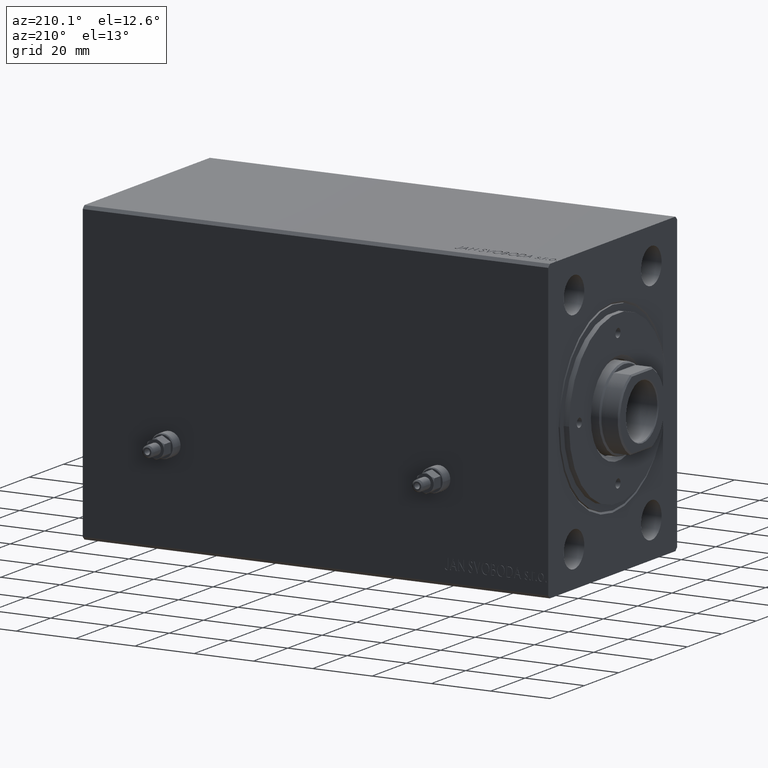
[diagram: clean part render]
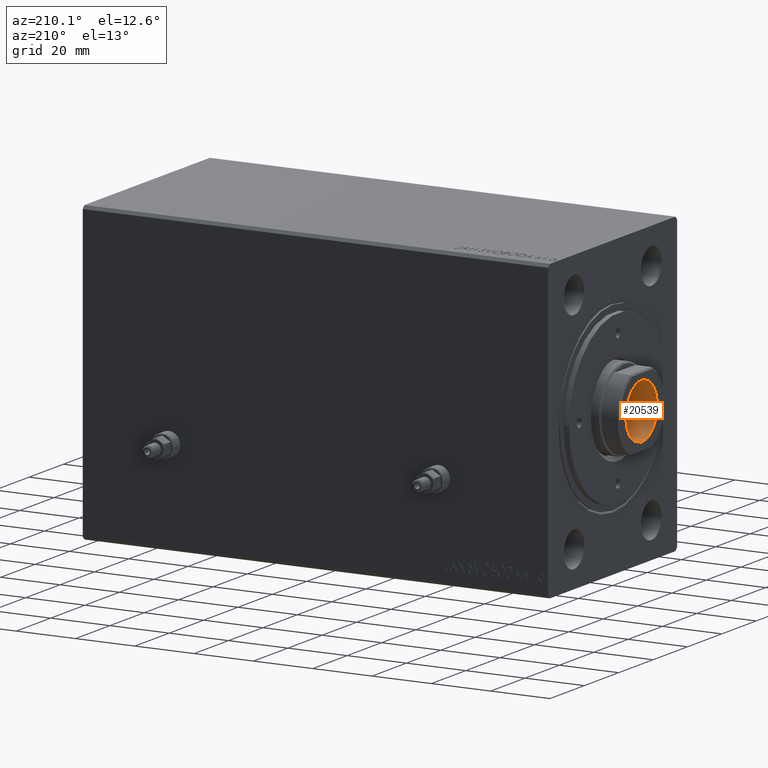
[diagram: same view with one face highlighted and labeled with its STEP entity id]
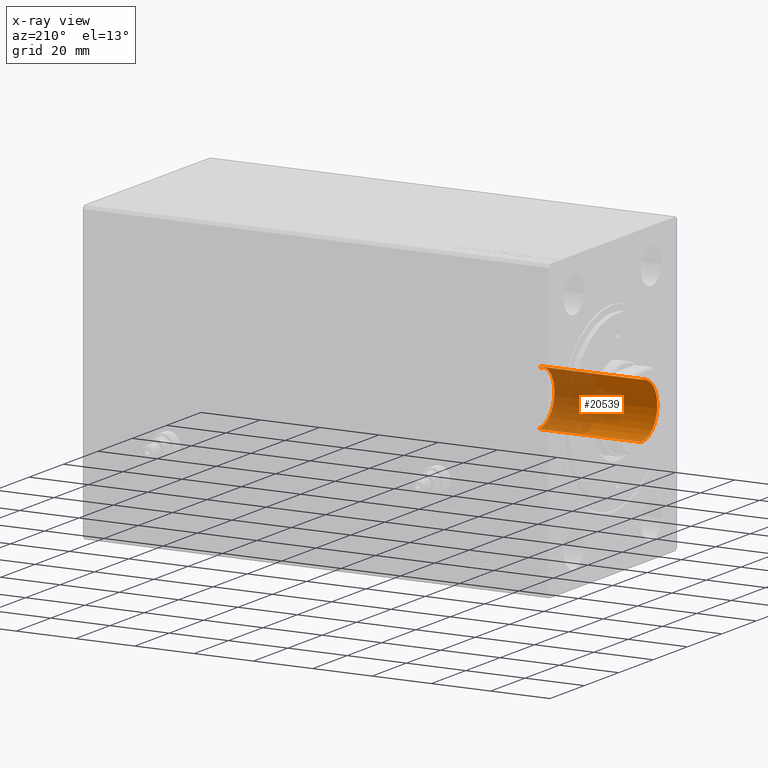
[diagram: x-ray of the same camera — body ghosted, the highlighted face saturated]
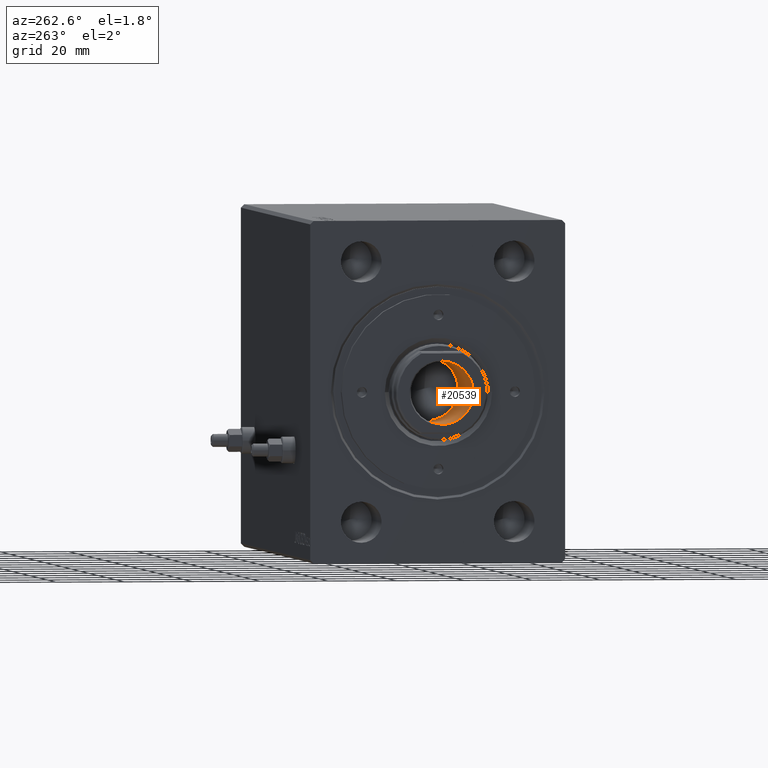
[diagram: same view with one face highlighted and labeled with its STEP entity id]
A machine part, auxiliary view. The second image highlights one B-rep face of the part: STEP entity #20539.
The next image is the same camera in x-ray: the body ghosted, the highlighted face saturated — about 55% of this face is hidden behind the body in this view.
A second angle (auxiliary view) of the same face is appended — the face is thin or edge-on in the first view.
In plain terms, the highlighted cylindrical surface (edge-blend (fillet) strip) has radius 9.25 mm, axis along (-1, 0, 0).
Its self-contained STEP definition (entity closure, byte-faithful):
#1861 = VERTEX_POINT ( 'NONE', #34752 ) ;
#2052 = VERTEX_POINT ( 'NONE', #17107 ) ;
#2425 = ORIENTED_EDGE ( 'NONE', *, *, #5252, .T. ) ;
#2764 = ORIENTED_EDGE ( 'NONE', *, *, #7318, .F. ) ;
#3007 = DIRECTION ( 'NONE',  ( 0.000000000000000000, 0.000000000000000000, 1.000000000000000000 ) ) ;
#3748 = CARTESIAN_POINT ( 'NONE',  ( 9.249999999999996447, 0.000000000000000000, 149.1999999999999886 ) ) ;
#4228 = VECTOR ( 'NONE', #10354, 1000.000000000000000 ) ;
#4233 = DIRECTION ( 'NONE',  ( -0.000000000000000000, -0.000000000000000000, 1.000000000000000000 ) ) ;
#5252 = EDGE_CURVE ( 'NONE', #1861, #22388, #42260, .T. ) ;
#6015 = CARTESIAN_POINT ( 'NONE',  ( 9.249999999999994671, 0.000000000000000000, 114.2000000000000028 ) ) ;
#6224 = DIRECTION ( 'NONE',  ( 1.000000000000000000, 0.000000000000000000, 0.000000000000000000 ) ) ;
#7318 = EDGE_CURVE ( 'NONE', #37823, #22388, #38380, .T. ) ;
#7653 = CYLINDRICAL_SURFACE ( 'NONE', #25427, 9.249999999999996447 ) ;
#7900 = DIRECTION ( 'NONE',  ( -0.000000000000000000, -0.000000000000000000, 1.000000000000000000 ) ) ;
#10354 = DIRECTION ( 'NONE',  ( -0.000000000000000000, -0.000000000000000000, 1.000000000000000000 ) ) ;
#10930 = CIRCLE ( 'NONE', #25519, 9.249999999999994671 ) ;
#10947 = CARTESIAN_POINT ( 'NONE',  ( -9.249999999999996447, 1.132798289211301304E-15, 149.1999999999999886 ) ) ;
#11663 = ORIENTED_EDGE ( 'NONE', *, *, #32101, .T. ) ;
#13705 = DIRECTION ( 'NONE',  ( -0.000000000000000000, -0.000000000000000000, 1.000000000000000000 ) ) ;
#17107 = CARTESIAN_POINT ( 'NONE',  ( -9.249999999999994671, 1.132798289211300909E-15, 114.2000000000000028 ) ) ;
#17801 = LINE ( 'NONE', #10947, #24614 ) ;
#17923 = CARTESIAN_POINT ( 'NONE',  ( 0.000000000000000000, 0.000000000000000000, 114.2000000000000028 ) ) ;
#18132 = DIRECTION ( 'NONE',  ( 1.000000000000000000, 0.000000000000000000, 0.000000000000000000 ) ) ;
#18857 = CARTESIAN_POINT ( 'NONE',  ( 9.249999999999996447, 0.000000000000000000, 148.9000000000000057 ) ) ;
#19745 = AXIS2_PLACEMENT_3D ( 'NONE', #44029, #3007, #6224 ) ;
#20539 = ADVANCED_FACE ( 'NONE', ( #38852 ), #7653, .F. ) ;
#21539 = CARTESIAN_POINT ( 'NONE',  ( 0.000000000000000000, 0.000000000000000000, 149.1999999999999886 ) ) ;
#22388 = VERTEX_POINT ( 'NONE', #18857 ) ;
#24347 = EDGE_CURVE ( 'NONE', #2052, #37823, #10930, .T. ) ;
#24614 = VECTOR ( 'NONE', #13705, 1000.000000000000000 ) ;
#25427 = AXIS2_PLACEMENT_3D ( 'NONE', #21539, #4233, #18132 ) ;
#25438 = DIRECTION ( 'NONE',  ( 1.000000000000000000, 0.000000000000000000, 0.000000000000000000 ) ) ;
#25519 = AXIS2_PLACEMENT_3D ( 'NONE', #17923, #7900, #25438 ) ;
#30070 = EDGE_LOOP ( 'NONE', ( #42866, #11663, #2425, #2764 ) ) ;
#32101 = EDGE_CURVE ( 'NONE', #2052, #1861, #17801, .T. ) ;
#34752 = CARTESIAN_POINT ( 'NONE',  ( -9.249999999999996447, 1.132798289211301304E-15, 148.9000000000000057 ) ) ;
#37823 = VERTEX_POINT ( 'NONE', #6015 ) ;
#38380 = LINE ( 'NONE', #3748, #4228 ) ;
#38852 = FACE_OUTER_BOUND ( 'NONE', #30070, .T. ) ;
#42260 = CIRCLE ( 'NONE', #19745, 9.249999999999996447 ) ;
#42866 = ORIENTED_EDGE ( 'NONE', *, *, #24347, .F. ) ;
#44029 = CARTESIAN_POINT ( 'NONE',  ( 0.000000000000000000, 0.000000000000000000, 148.9000000000000057 ) ) ;